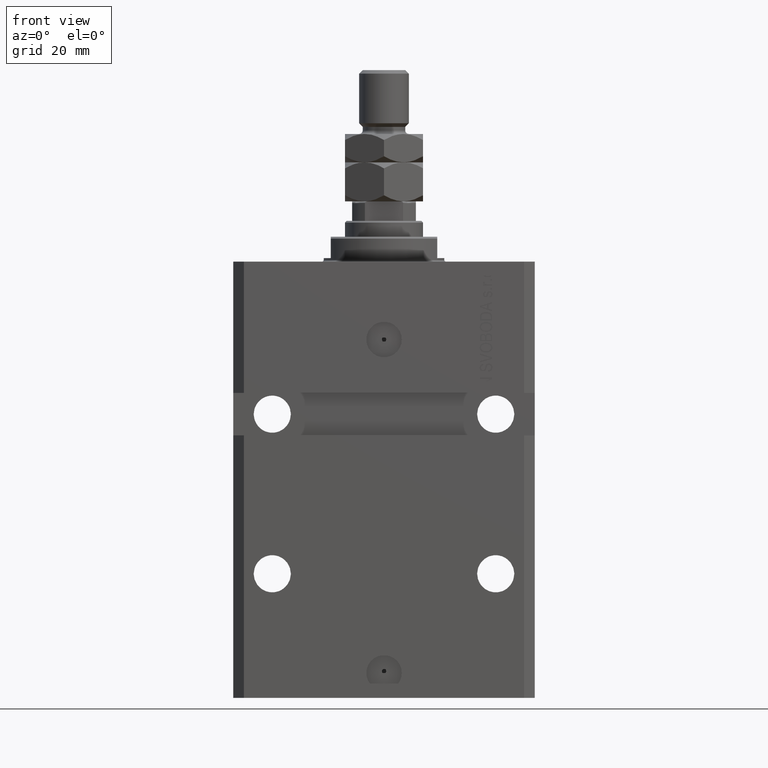
[diagram: clean part render]
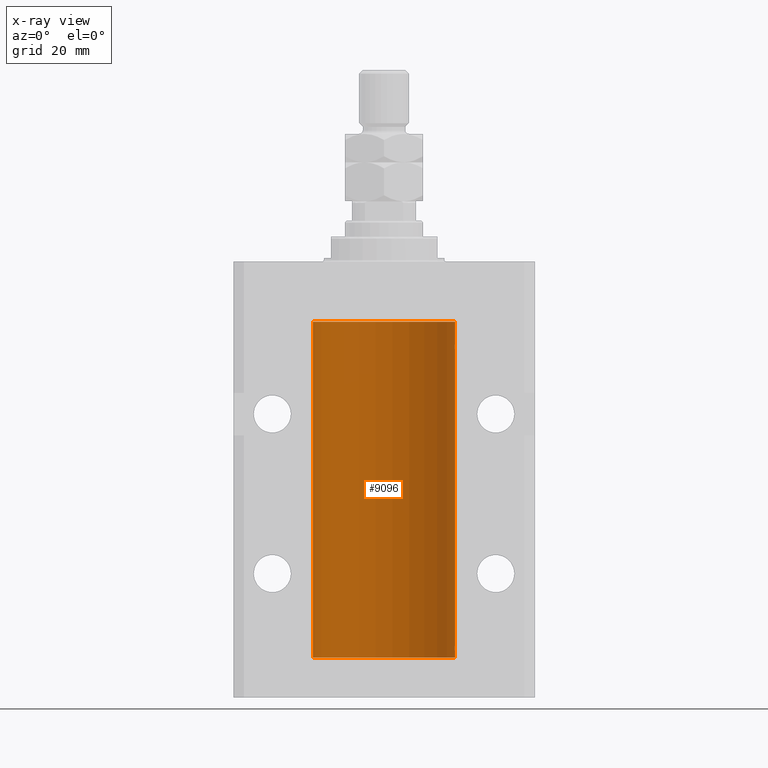
[diagram: x-ray — body ghosted, one internal face saturated and labeled with its STEP entity id]
A machine part, front view, then the same camera in x-ray: the body is ghosted and one INTERNAL B-rep face — a face not visible from any outside direction — is saturated and labeled: STEP entity #9096.
In plain terms, the highlighted cylindrical surface (partial cylindrical patch) has radius 20 mm, axis along (0, 0, 1).
Its self-contained STEP definition (entity closure, byte-faithful):
#671 = EDGE_CURVE ( 'NONE', #28219, #42808, #18714, .T. ) ;
#730 = CARTESIAN_POINT ( 'NONE',  ( 19.99023198964909298, 0.6250000000081574747, -108.9999999999991047 ) ) ;
#1398 = B_SPLINE_CURVE_WITH_KNOTS ( 'NONE', 3,
 ( #30345, #41958, #16333, #33907, #5168, #45282, #34594, #19654 ),
 .UNSPECIFIED., .F., .F.,
 ( 4, 2, 2, 4 ),
 ( 3.558729249985022577E-18, 0.0002443247335684094949, 0.0004886494671368154120, 0.0009772989342736271377 ),
 .UNSPECIFIED. ) ;
#1536 = CARTESIAN_POINT ( 'NONE',  ( 19.99999999999999645, 0.1631318418333146114, -23.37500000000016698 ) ) ;
#3626 = EDGE_CURVE ( 'NONE', #31108, #28219, #22023, .T. ) ;
#3693 = B_SPLINE_CURVE_WITH_KNOTS ( 'NONE', 3,
 ( #730, #37084, #11673, #22373, #36363, #21006 ),
 .UNSPECIFIED., .F., .F.,
 ( 4, 2, 4 ),
 ( 0.0009772989342736221503, 0.001465726722058849005, 0.001954154509844075859 ),
 .UNSPECIFIED. ) ;
#3846 = VECTOR ( 'NONE', #15133, 1000.000000000000000 ) ;
#4788 = VECTOR ( 'NONE', #44948, 1000.000000000000000 ) ;
#4850 = AXIS2_PLACEMENT_3D ( 'NONE', #45799, #20879, #43171 ) ;
#4919 = CARTESIAN_POINT ( 'NONE',  ( 20.00000000000000000, 0.000000000000000000, -111.5999999999999943 ) ) ;
#4962 = EDGE_CURVE ( 'NONE', #39940, #17675, #44488, .T. ) ;
#5089 = EDGE_CURVE ( 'NONE', #11864, #23463, #44680, .T. ) ;
#5168 = CARTESIAN_POINT ( 'NONE',  ( 19.99638788807192924, 0.3844440352705381647, -24.49948058986479893 ) ) ;
#6217 = CARTESIAN_POINT ( 'NONE',  ( 19.99023198964934167, 0.6250000000002757794, -109.1631101482932706 ) ) ;
#7082 = EDGE_CURVE ( 'NONE', #44926, #39940, #19277, .T. ) ;
#7273 = CARTESIAN_POINT ( 'NONE',  ( 20.00000000000000000, -4.058908006348821872E-15, -109.6250000000000000 ) ) ;
#7395 = EDGE_CURVE ( 'NONE', #23463, #31108, #1398, .T. ) ;
#7484 = CARTESIAN_POINT ( 'NONE',  ( 0.000000000000000000, 0.000000000000000000, -17.00000000000000000 ) ) ;
#8783 = CARTESIAN_POINT ( 'NONE',  ( -20.00000000000000000, 2.449293598294706513E-15, -111.5999999999999943 ) ) ;
#9071 = VECTOR ( 'NONE', #33879, 1000.000000000000000 ) ;
#9083 = CARTESIAN_POINT ( 'NONE',  ( 19.99999999999999645, 0.08261455565447825555, -109.6249999999999574 ) ) ;
#9096 = ADVANCED_FACE ( 'NONE', ( #30772 ), #45248, .F. ) ;
#9103 = CARTESIAN_POINT ( 'NONE',  ( 20.00000000000000000, 0.000000000000000000, -17.00000000000000000 ) ) ;
#10275 = DIRECTION ( 'NONE',  ( -0.000000000000000000, -0.000000000000000000, 1.000000000000000000 ) ) ;
#10412 = ORIENTED_EDGE ( 'NONE', *, *, #5089, .T. ) ;
#10629 = ORIENTED_EDGE ( 'NONE', *, *, #4962, .F. ) ;
#10654 = CARTESIAN_POINT ( 'NONE',  ( 19.99023198964909298, 0.6250000000081574747, -108.9999999999991047 ) ) ;
#11673 = CARTESIAN_POINT ( 'NONE',  ( 19.99253733128256627, 0.5586305947779004466, -108.6747603673526044 ) ) ;
#11864 = VERTEX_POINT ( 'NONE', #41991 ) ;
#11939 = CARTESIAN_POINT ( 'NONE',  ( 20.00000000000010303, 3.555666340528858977E-13, -23.37499999999667111 ) ) ;
#12730 = CARTESIAN_POINT ( 'NONE',  ( 0.000000000000000000, 0.000000000000000000, -111.5999999999999943 ) ) ;
#14288 = EDGE_CURVE ( 'NONE', #37847, #35555, #19151, .T. ) ;
#15133 = DIRECTION ( 'NONE',  ( -0.000000000000000000, -0.000000000000000000, 1.000000000000000000 ) ) ;
#15930 = AXIS2_PLACEMENT_3D ( 'NONE', #7484, #18176, #22681 ) ;
#16333 = CARTESIAN_POINT ( 'NONE',  ( 19.99947351343144675, 0.1636818329565332686, -24.60872855715644292 ) ) ;
#16357 = EDGE_CURVE ( 'NONE', #42808, #17675, #37918, .T. ) ;
#17053 = EDGE_LOOP ( 'NONE', ( #10629, #39045, #39573, #35615, #25568, #10412, #43552, #40014, #25929, #40613 ) ) ;
#17398 = DIRECTION ( 'NONE',  ( 1.000000000000000000, 0.000000000000000000, 0.000000000000000000 ) ) ;
#17675 = VERTEX_POINT ( 'NONE', #39210 ) ;
#18176 = DIRECTION ( 'NONE',  ( 0.000000000000000000, 0.000000000000000000, 1.000000000000000000 ) ) ;
#18714 = LINE ( 'NONE', #33187, #3846 ) ;
#18906 = CARTESIAN_POINT ( 'NONE',  ( 20.00000000000010303, 3.555666340528858977E-13, -23.37499999999667111 ) ) ;
#19151 = B_SPLINE_CURVE_WITH_KNOTS ( 'NONE', 3,
 ( #27838, #9083, #42088, #38754, #20009, #30066, #6217, #20708 ),
 .UNSPECIFIED., .F., .F.,
 ( 4, 2, 2, 4 ),
 ( 3.944467879762244826E-18, 0.0002443247335684012008, 0.0004886494671367983900, 0.0009772989342736221503 ),
 .UNSPECIFIED. ) ;
#19277 = CIRCLE ( 'NONE', #4850, 20.00000000000000000 ) ;
#19406 = LINE ( 'NONE', #44783, #9071 ) ;
#19529 = DIRECTION ( 'NONE',  ( -0.000000000000000000, -0.000000000000000000, 1.000000000000000000 ) ) ;
#19654 = CARTESIAN_POINT ( 'NONE',  ( 19.99023198964909298, 0.6250000000081508134, -23.99999999999910472 ) ) ;
#20009 = CARTESIAN_POINT ( 'NONE',  ( 19.99638788807192924, 0.3844440352705359998, -109.4994805898647883 ) ) ;
#20708 = CARTESIAN_POINT ( 'NONE',  ( 19.99023198964909298, 0.6250000000081574747, -108.9999999999991047 ) ) ;
#20879 = DIRECTION ( 'NONE',  ( 0.000000000000000000, 0.000000000000000000, 1.000000000000000000 ) ) ;
#21006 = CARTESIAN_POINT ( 'NONE',  ( 20.00000000000010303, 3.555666352936568165E-13, -108.3749999999966747 ) ) ;
#21444 = VECTOR ( 'NONE', #19529, 1000.000000000000000 ) ;
#22023 = B_SPLINE_CURVE_WITH_KNOTS ( 'NONE', 3,
 ( #44542, #40763, #22710, #37884, #1536, #18906 ),
 .UNSPECIFIED., .F., .F.,
 ( 4, 2, 4 ),
 ( 0.0009772989342736271377, 0.001465726722058853775, 0.001954154509844080196 ),
 .UNSPECIFIED. ) ;
#22353 = AXIS2_PLACEMENT_3D ( 'NONE', #12730, #10275, #17398 ) ;
#22373 = CARTESIAN_POINT ( 'NONE',  ( 19.99769474220011034, 0.3253030616682413001, -108.4414063389763072 ) ) ;
#22681 = DIRECTION ( 'NONE',  ( 1.000000000000000000, 0.000000000000000000, 0.000000000000000000 ) ) ;
#22710 = CARTESIAN_POINT ( 'NONE',  ( 19.99253733128256272, 0.5586305947778931191, -23.67476036735258305 ) ) ;
#23096 = CARTESIAN_POINT ( 'NONE',  ( 20.00000000000000000, 0.000000000000000000, -111.5999999999999943 ) ) ;
#23463 = VERTEX_POINT ( 'NONE', #46101 ) ;
#25568 = ORIENTED_EDGE ( 'NONE', *, *, #29980, .T. ) ;
#25929 = ORIENTED_EDGE ( 'NONE', *, *, #671, .T. ) ;
#27838 = CARTESIAN_POINT ( 'NONE',  ( 20.00000000000000000, -4.058908006348821872E-15, -109.6250000000000000 ) ) ;
#28219 = VERTEX_POINT ( 'NONE', #11939 ) ;
#29980 = EDGE_CURVE ( 'NONE', #35555, #11864, #3693, .T. ) ;
#30066 = CARTESIAN_POINT ( 'NONE',  ( 19.99256353007439202, 0.5574106582031174151, -109.3263903518011517 ) ) ;
#30345 = CARTESIAN_POINT ( 'NONE',  ( 20.00000000000000000, 2.480610556832390753E-15, -24.62500000000000000 ) ) ;
#30772 = FACE_OUTER_BOUND ( 'NONE', #17053, .T. ) ;
#31108 = VERTEX_POINT ( 'NONE', #40605 ) ;
#33187 = CARTESIAN_POINT ( 'NONE',  ( 20.00000000000000000, 0.000000000000000000, -111.5999999999999943 ) ) ;
#33879 = DIRECTION ( 'NONE',  ( -0.000000000000000000, -0.000000000000000000, 1.000000000000000000 ) ) ;
#33907 = CARTESIAN_POINT ( 'NONE',  ( 19.99766100389832957, 0.3150982863324739425, -24.54594438241279164 ) ) ;
#34594 = CARTESIAN_POINT ( 'NONE',  ( 19.99023198964933812, 0.6250000000002681189, -24.16311014829328130 ) ) ;
#35555 = VERTEX_POINT ( 'NONE', #10654 ) ;
#35615 = ORIENTED_EDGE ( 'NONE', *, *, #14288, .T. ) ;
#36363 = CARTESIAN_POINT ( 'NONE',  ( 19.99999999999999645, 0.1631318418333158327, -108.3750000000001705 ) ) ;
#37084 = CARTESIAN_POINT ( 'NONE',  ( 19.99023198964936299, 0.6249999999995806688, -108.8369638477980885 ) ) ;
#37847 = VERTEX_POINT ( 'NONE', #7273 ) ;
#37884 = CARTESIAN_POINT ( 'NONE',  ( 19.99769474220010679, 0.3253030616682399123, -23.44140633897632142 ) ) ;
#37918 = CIRCLE ( 'NONE', #15930, 20.00000000000000000 ) ;
#38754 = CARTESIAN_POINT ( 'NONE',  ( 19.99766100389833312, 0.3150982863324784944, -109.5459443824127987 ) ) ;
#39045 = ORIENTED_EDGE ( 'NONE', *, *, #7082, .F. ) ;
#39210 = CARTESIAN_POINT ( 'NONE',  ( -20.00000000000000000, 2.449293598294706513E-15, -17.00000000000000000 ) ) ;
#39573 = ORIENTED_EDGE ( 'NONE', *, *, #44101, .T. ) ;
#39940 = VERTEX_POINT ( 'NONE', #8783 ) ;
#40014 = ORIENTED_EDGE ( 'NONE', *, *, #3626, .T. ) ;
#40605 = CARTESIAN_POINT ( 'NONE',  ( 19.99023198964909298, 0.6250000000081508134, -23.99999999999910472 ) ) ;
#40613 = ORIENTED_EDGE ( 'NONE', *, *, #16357, .T. ) ;
#40710 = CARTESIAN_POINT ( 'NONE',  ( -20.00000000000000000, 2.449293598294706513E-15, -111.5999999999999943 ) ) ;
#40763 = CARTESIAN_POINT ( 'NONE',  ( 19.99023198964935588, 0.6249999999995746736, -23.83696384779806721 ) ) ;
#41958 = CARTESIAN_POINT ( 'NONE',  ( 19.99999999999999645, 0.08261455565447944904, -24.62499999999999289 ) ) ;
#41991 = CARTESIAN_POINT ( 'NONE',  ( 20.00000000000010303, 3.555666352936568165E-13, -108.3749999999966747 ) ) ;
#42088 = CARTESIAN_POINT ( 'NONE',  ( 19.99947351343144319, 0.1636818329565372654, -109.6087285571564536 ) ) ;
#42808 = VERTEX_POINT ( 'NONE', #9103 ) ;
#43171 = DIRECTION ( 'NONE',  ( 1.000000000000000000, 0.000000000000000000, 0.000000000000000000 ) ) ;
#43552 = ORIENTED_EDGE ( 'NONE', *, *, #7395, .T. ) ;
#44101 = EDGE_CURVE ( 'NONE', #44926, #37847, #19406, .T. ) ;
#44488 = LINE ( 'NONE', #40710, #4788 ) ;
#44542 = CARTESIAN_POINT ( 'NONE',  ( 19.99023198964909298, 0.6250000000081508134, -23.99999999999910472 ) ) ;
#44680 = LINE ( 'NONE', #23096, #21444 ) ;
#44783 = CARTESIAN_POINT ( 'NONE',  ( 20.00000000000000000, 0.000000000000000000, -111.5999999999999943 ) ) ;
#44926 = VERTEX_POINT ( 'NONE', #4919 ) ;
#44948 = DIRECTION ( 'NONE',  ( -0.000000000000000000, -0.000000000000000000, 1.000000000000000000 ) ) ;
#45248 = CYLINDRICAL_SURFACE ( 'NONE', #22353, 20.00000000000000000 ) ;
#45282 = CARTESIAN_POINT ( 'NONE',  ( 19.99256353007439202, 0.5574106582031160828, -24.32639035180114817 ) ) ;
#45799 = CARTESIAN_POINT ( 'NONE',  ( 0.000000000000000000, 0.000000000000000000, -111.5999999999999943 ) ) ;
#46101 = CARTESIAN_POINT ( 'NONE',  ( 20.00000000000000000, 2.480610556832390753E-15, -24.62500000000000000 ) ) ;